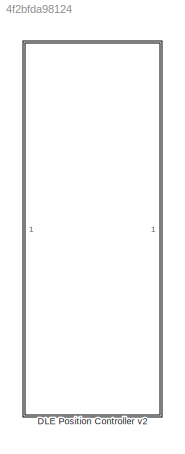
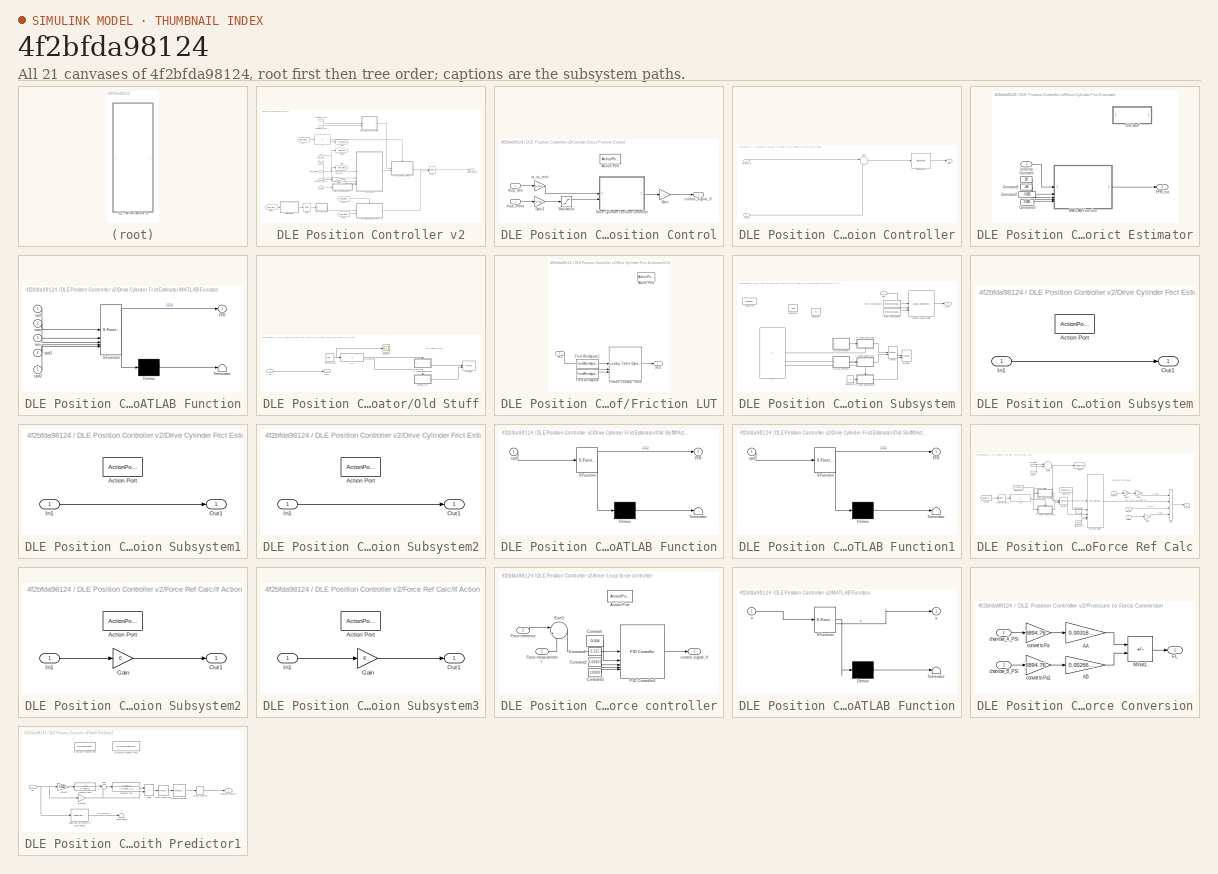
[diagram: thumbnail index - all 21 canvases of the model, root first then tree order]
MODEL slx_4f2bfda98124
KIND library
CONFIG AbsTol = auto
CONFIG EnableMultiTasking = off
CONFIG FixedStep = auto
CONFIG MaxStep = auto
CONFIG MinStep = auto
CONFIG RelTol = 1e-3
CONFIG SampleTimeConstraint = Unconstrained
CONFIG SolverName = VariableStepAuto
CONFIG StartTime = 0.0
CONFIG StopTime = 10.0
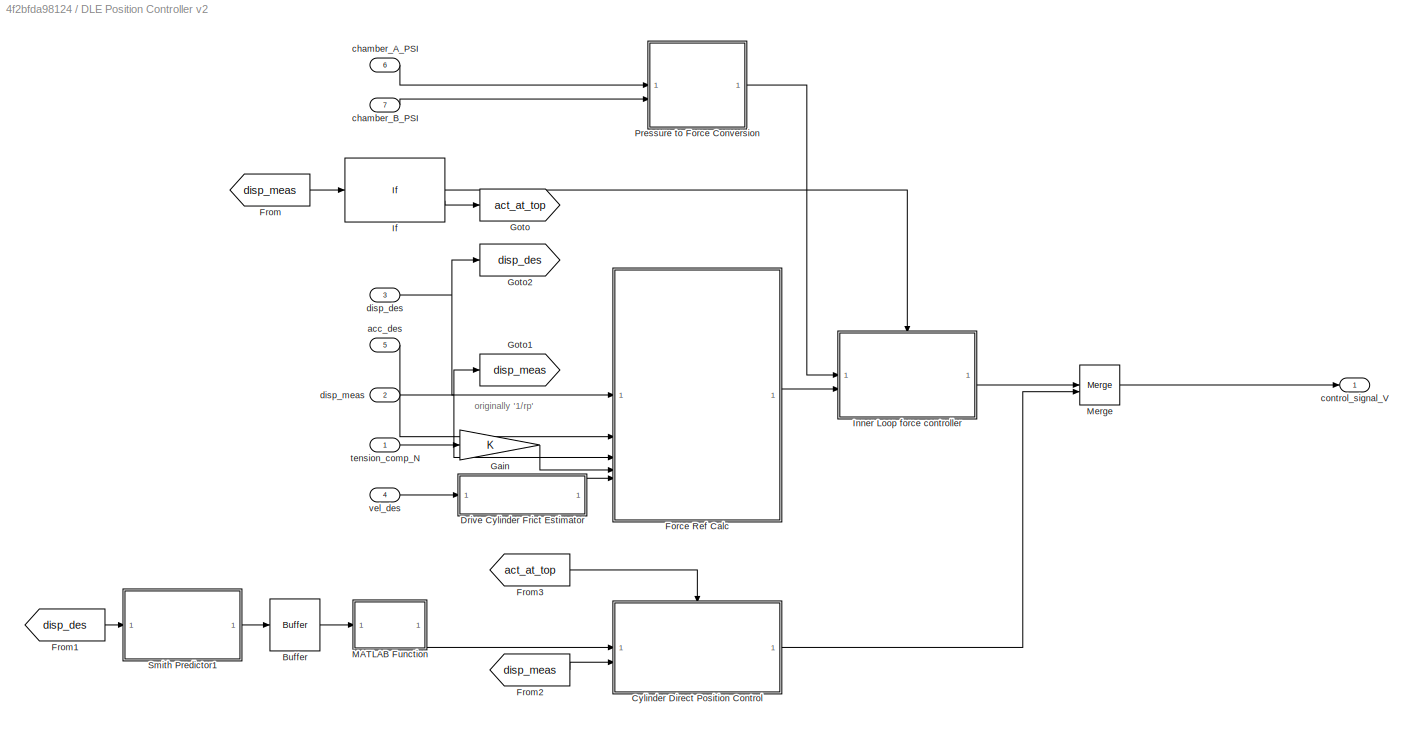
BLOCK [SubSystem] DLE Position Controller v2
BLOCK [Buffer] DLE Position Controller v2/Buffer
  Commented = through
  OutputFrames = off
BLOCK [SubSystem] DLE Position Controller v2/Cylinder Direct Position Control
  TreatAsAtomicUnit = on
BLOCK [ActionPort] DLE Position Controller v2/Cylinder Direct Position Control/Action Port
BLOCK [SubSystem] DLE Position Controller v2/Cylinder Direct Position Control/Drive Cylinder Position Controller
BLOCK [Reference] DLE Position Controller v2/Cylinder Direct Position Control/Drive Cylinder Position Controller/ PID Controller1  REF=slpidlib/PID Controller
  SourceBlock = slpidlib/PID Controller
  SourceType = PID 1dof
BLOCK [Inport] DLE Position Controller v2/Cylinder Direct Position Control/Drive Cylinder Position Controller/LVDT_in
BLOCK [Outport] DLE Position Controller v2/Cylinder Direct Position Control/Drive Cylinder Position Controller/Out1
  VectorParamsAs1DForOutWhenUnconnected = off
BLOCK [Sum] DLE Position Controller v2/Cylinder Direct Position Control/Drive Cylinder Position Controller/Sum
  Inputs = |+-
BLOCK [Inport] DLE Position Controller v2/Cylinder Direct Position Control/Drive Cylinder Position Controller/disp_des_in
  Port = 2
BLOCK [Gain] DLE Position Controller v2/Cylinder Direct Position Control/Gain
  Gain = -1
BLOCK [Gain] DLE Position Controller v2/Cylinder Direct Position Control/Gain1
  Gain = 39.3701
BLOCK [Saturate] DLE Position Controller v2/Cylinder Direct Position Control/Saturation
  LowerLimit = 0
  UpperLimit = 12
BLOCK [Outport] DLE Position Controller v2/Cylinder Direct Position Control/control_signal_V
  VectorParamsAs1DForOutWhenUnconnected = off
BLOCK [Inport] DLE Position Controller v2/Cylinder Direct Position Control/disp_des
BLOCK [Inport] DLE Position Controller v2/Cylinder Direct Position Control/disp_meas
  Port = 2
BLOCK [Gain] DLE Position Controller v2/Cylinder Direct Position Control/m_to_inch
  Gain = 39.3701
BLOCK [SubSystem] DLE Position Controller v2/Drive Cylinder Frict Estimator
BLOCK [Constant] DLE Position Controller v2/Drive Cylinder Frict Estimator/Constant
  Value = 150
BLOCK [Constant] DLE Position Controller v2/Drive Cylinder Frict Estimator/Constant1
  Value = -340
BLOCK [Constant] DLE Position Controller v2/Drive Cylinder Frict Estimator/Constant2
  Value = -0.0025
BLOCK [Constant] DLE Position Controller v2/Drive Cylinder Frict Estimator/Constant3
  Value = 0.0025
BLOCK [Outport] DLE Position Controller v2/Drive Cylinder Frict Estimator/FFR_est
  VectorParamsAs1DForOutWhenUnconnected = off
BLOCK [SubSystem] DLE Position Controller v2/Drive Cylinder Frict Estimator/MATLAB Function
  ErrorFcn = Stateflow.Translate.translate
  PermitHierarchicalResolution = ExplicitOnly
  SFBlockType = MATLAB Function
  TreatAsAtomicUnit = on
BLOCK [Demux] DLE Position Controller v2/Drive Cylinder Frict Estimator/MATLAB Function/ Demux 
  Outputs = 1
BLOCK [S-Function] DLE Position Controller v2/Drive Cylinder Frict Estimator/MATLAB Function/ SFunction 
  EnableBusSupport = off
  FunctionName = sf_sfun
  PortCounts = [5 2]
  SFcnIsStateOwnerBlock = off
  SFunctionDeploymentMode = off
  Tag = Stateflow S-Function 7
BLOCK [Terminator] DLE Position Controller v2/Drive Cylinder Frict Estimator/MATLAB Function/ Terminator 
BLOCK [Outport] DLE Position Controller v2/Drive Cylinder Frict Estimator/MATLAB Function/FFR
  VectorParamsAs1DForOutWhenUnconnected = off
BLOCK [Inport] DLE Position Controller v2/Drive Cylinder Frict Estimator/MATLAB Function/max
  Port = 2
BLOCK [Inport] DLE Position Controller v2/Drive Cylinder Frict Estimator/MATLAB Function/min
  Port = 3
BLOCK [Inport] DLE Position Controller v2/Drive Cylinder Frict Estimator/MATLAB Function/xpd
BLOCK [Inport] DLE Position Controller v2/Drive Cylinder Frict Estimator/MATLAB Function/xpd1
  Port = 4
BLOCK [Inport] DLE Position Controller v2/Drive Cylinder Frict Estimator/MATLAB Function/xpd2
  Port = 5
BLOCK [SubSystem] DLE Position Controller v2/Drive Cylinder Frict Estimator/Old Stuff
  Commented = on
BLOCK [SubSystem] DLE Position Controller v2/Drive Cylinder Frict Estimator/Old Stuff/Friction LUT
  TreatAsAtomicUnit = on
BLOCK [ActionPort] DLE Position Controller v2/Drive Cylinder Frict Estimator/Old Stuff/Friction LUT/Action Port
BLOCK [Reference] DLE Position Controller v2/Drive Cylinder Frict Estimator/Old Stuff/Friction LUT/Friction Lookup Table  REF=simulink/Lookup
Tables/Lookup
Table
Dynamic
  SourceBlock = simulink/Lookup\nTables/Lookup\nTable\nDynamic
  SourceType = Lookup Table Dynamic
BLOCK [FromWorkspace] DLE Position Controller v2/Drive Cylinder Frict Estimator/Old Stuff/Friction LUT/From Workspace
  VariableName = FFR
BLOCK [FromWorkspace] DLE Position Controller v2/Drive Cylinder Frict Estimator/Old Stuff/Friction LUT/From Workspace1
  VariableName = xpdot
BLOCK [Inport] DLE Position Controller v2/Drive Cylinder Frict Estimator/Old Stuff/Friction LUT/In1
BLOCK [Outport] DLE Position Controller v2/Drive Cylinder Frict Estimator/Old Stuff/Friction LUT/Out1
  VectorParamsAs1DForOutWhenUnconnected = off
BLOCK [SubSystem] DLE Position Controller v2/Drive Cylinder Frict Estimator/Old Stuff/If Action Subsystem
  TreatAsAtomicUnit = on
BLOCK [ActionPort] DLE Position Controller v2/Drive Cylinder Frict Estimator/Old Stuff/If Action Subsystem/Action Port
BLOCK [Constant] DLE Position Controller v2/Drive Cylinder Frict Estimator/Old Stuff/If Action Subsystem/Constant
  Value = 75
BLOCK [Constant] DLE Position Controller v2/Drive Cylinder Frict Estimator/Old Stuff/If Action Subsystem/Constant1
  Value = -250
BLOCK [Constant] DLE Position Controller v2/Drive Cylinder Frict Estimator/Old Stuff/If Action Subsystem/Constant2
  Commented = on
  Value = 0
BLOCK [Reference] DLE Position Controller v2/Drive Cylinder Frict Estimator/Old Stuff/If Action Subsystem/Friction Lookup Table  REF=simulink/Lookup
Tables/Lookup
Table
Dynamic
  SourceBlock = simulink/Lookup\nTables/Lookup\nTable\nDynamic
  SourceType = Lookup Table Dynamic
BLOCK [FromWorkspace] DLE Position Controller v2/Drive Cylinder Frict Estimator/Old Stuff/If Action Subsystem/From Workspace
  VariableName = FFR
BLOCK [FromWorkspace] DLE Position Controller v2/Drive Cylinder Frict Estimator/Old Stuff/If Action Subsystem/From Workspace1
  VariableName = xpdot
BLOCK [If] DLE Position Controller v2/Drive Cylinder Frict Estimator/Old Stuff/If Action Subsystem/If
  Commented = on
  ElseIfExpressions = u1 < 0
BLOCK [SubSystem] DLE Position Controller v2/Drive Cylinder Frict Estimator/Old Stuff/If Action Subsystem/If Action Subsystem
  Commented = on
  TreatAsAtomicUnit = on
BLOCK [ActionPort] DLE Position Controller v2/Drive Cylinder Frict Estimator/Old Stuff/If Action Subsystem/If Action Subsystem/Action Port
BLOCK [Inport] DLE Position Controller v2/Drive Cylinder Frict Estimator/Old Stuff/If Action Subsystem/If Action Subsystem/In1
BLOCK [Outport] DLE Position Controller v2/Drive Cylinder Frict Estimator/Old Stuff/If Action Subsystem/If Action Subsystem/Out1
  VectorParamsAs1DForOutWhenUnconnected = off
BLOCK [SubSystem] DLE Position Controller v2/Drive Cylinder Frict Estimator/Old Stuff/If Action Subsystem/If Action Subsystem1
  Commented = on
  TreatAsAtomicUnit = on
BLOCK [ActionPort] DLE Position Controller v2/Drive Cylinder Frict Estimator/Old Stuff/If Action Subsystem/If Action Subsystem1/Action Port
BLOCK [Inport] DLE Position Controller v2/Drive Cylinder Frict Estimator/Old Stuff/If Action Subsystem/If Action Subsystem1/In1
BLOCK [Outport] DLE Position Controller v2/Drive Cylinder Frict Estimator/Old Stuff/If Action Subsystem/If Action Subsystem1/Out1
  VectorParamsAs1DForOutWhenUnconnected = off
BLOCK [SubSystem] DLE Position Controller v2/Drive Cylinder Frict Estimator/Old Stuff/If Action Subsystem/If Action Subsystem2
  Commented = on
  TreatAsAtomicUnit = on
BLOCK [ActionPort] DLE Position Controller v2/Drive Cylinder Frict Estimator/Old Stuff/If Action Subsystem/If Action Subsystem2/Action Port
BLOCK [Inport] DLE Position Controller v2/Drive Cylinder Frict Estimator/Old Stuff/If Action Subsystem/If Action Subsystem2/In1
BLOCK [Outport] DLE Position Controller v2/Drive Cylinder Frict Estimator/Old Stuff/If Action Subsystem/If Action Subsystem2/Out1
  VectorParamsAs1DForOutWhenUnconnected = off
BLOCK [SubSystem] DLE Position Controller v2/Drive Cylinder Frict Estimator/Old Stuff/If Action Subsystem/MATLAB Function
  Commented = on
  ErrorFcn = Stateflow.Translate.translate
  PermitHierarchicalResolution = ExplicitOnly
  SFBlockType = MATLAB Function
  TreatAsAtomicUnit = on
BLOCK [Demux] DLE Position Controller v2/Drive Cylinder Frict Estimator/Old Stuff/If Action Subsystem/MATLAB Function/ Demux 
  Outputs = 1
BLOCK [S-Function] DLE Position Controller v2/Drive Cylinder Frict Estimator/Old Stuff/If Action Subsystem/MATLAB Function/ SFunction 
  EnableBusSupport = off
  FunctionName = sf_sfun
  PortCounts = [1 2]
  SFcnIsStateOwnerBlock = off
  SFunctionDeploymentMode = off
  Tag = Stateflow S-Function 8
BLOCK [Terminator] DLE Position Controller v2/Drive Cylinder Frict Estimator/Old Stuff/If Action Subsystem/MATLAB Function/ Terminator 
BLOCK [Outport] DLE Position Controller v2/Drive Cylinder Frict Estimator/Old Stuff/If Action Subsystem/MATLAB Function/FFR
  VectorParamsAs1DForOutWhenUnconnected = off
BLOCK [Inport] DLE Position Controller v2/Drive Cylinder Frict Estimator/Old Stuff/If Action Subsystem/MATLAB Function/xpd
BLOCK [SubSystem] DLE Position Controller v2/Drive Cylinder Frict Estimator/Old Stuff/If Action Subsystem/MATLAB Function1
  Commented = on
  ErrorFcn = Stateflow.Translate.translate
  PermitHierarchicalResolution = ExplicitOnly
  SFBlockType = MATLAB Function
  TreatAsAtomicUnit = on
BLOCK [Demux] DLE Position Controller v2/Drive Cylinder Frict Estimator/Old Stuff/If Action Subsystem/MATLAB Function1/ Demux 
  Outputs = 1
BLOCK [S-Function] DLE Position Controller v2/Drive Cylinder Frict Estimator/Old Stuff/If Action Subsystem/MATLAB Function1/ SFunction 
  EnableBusSupport = off
  FunctionName = sf_sfun
  PortCounts = [1 2]
  SFcnIsStateOwnerBlock = off
  SFunctionDeploymentMode = off
  Tag = Stateflow S-Function 9
BLOCK [Terminator] DLE Position Controller v2/Drive Cylinder Frict Estimator/Old Stuff/If Action Subsystem/MATLAB Function1/ Terminator 
BLOCK [Outport] DLE Position Controller v2/Drive Cylinder Frict Estimator/Old Stuff/If Action Subsystem/MATLAB Function1/FFR
  VectorParamsAs1DForOutWhenUnconnected = off
BLOCK [Inport] DLE Position Controller v2/Drive Cylinder Frict Estimator/Old Stuff/If Action Subsystem/MATLAB Function1/xpd
BLOCK [Merge] DLE Position Controller v2/Drive Cylinder Frict Estimator/Old Stuff/If Action Subsystem/Merge
  Commented = on
BLOCK [Merge] DLE Position Controller v2/Drive Cylinder Frict Estimator/Old Stuff/If Action Subsystem/Merge1
  Commented = on
BLOCK [Outport] DLE Position Controller v2/Drive Cylinder Frict Estimator/Old Stuff/If Action Subsystem/Out1
  VectorParamsAs1DForOutWhenUnconnected = off
BLOCK [Inport] DLE Position Controller v2/Drive Cylinder Frict Estimator/Old Stuff/If Action Subsystem/xpd
BLOCK [If] DLE Position Controller v2/Drive Cylinder Frict Estimator/Old Stuff/If1
  IfExpression = u1 == 1
BLOCK [Inport] DLE Position Controller v2/Drive Cylinder Frict Estimator/Old Stuff/In1
BLOCK [Reference] DLE Position Controller v2/Drive Cylinder Frict Estimator/Old Stuff/Interval Test  REF=simulink/Logic and Bit
Operations/Interval Test
  SourceBlock = simulink/Logic and Bit\nOperations/Interval Test
  SourceType = Interval Test
BLOCK [Merge] DLE Position Controller v2/Drive Cylinder Frict Estimator/Old Stuff/Merge1
BLOCK [Outport] DLE Position Controller v2/Drive Cylinder Frict Estimator/Old Stuff/Out1
  VectorParamsAs1DForOutWhenUnconnected = off
BLOCK [Scope] DLE Position Controller v2/Drive Cylinder Frict Estimator/Old Stuff/Scope11
  ActiveDisplayYMaximum = 1.125
  ActiveDisplayYMinimum = -0.125
  DataLoggingVariableName = ScopeData1
  Floating = off
  GraphicalSettings = {"GraphicalSettings":{"LegacySettings":true,"Style":{"Style":{"AxesColor":"[0 0 0]","ChannelNames":[""],"ColorOrder":"[1 1 0.0666666666666667;0.0745098039215686 0.623529411764706 1;1 0.411764705882353 0.16078431372549;0.392156862745098 0.831372549019608 0.0745098039215686;0.717647058823529 0.274509803921569 1;0.0588235294117647 1 1;1 0.0745098039215686 0.650980392156863]","CurrentConfiguration":"e...<+368ch>
  MultipleDisplayCache = [{"MaxYLimMag":1.125,"MaxYLimReal":1.125,"MinYLimMag":0,"MinYLimReal":-0.125,"PlotAsMagnitudePhase":false,"ShowGrid":true,"ShowLegend":false,"Title":"%<SignalLabel>","YLabel":""}]
  NumInputPorts = 1
  WasSavedAsWebScope = on
  WindowPosition = [1 41 1920 963]
BLOCK [Inport] DLE Position Controller v2/Drive Cylinder Frict Estimator/velocity
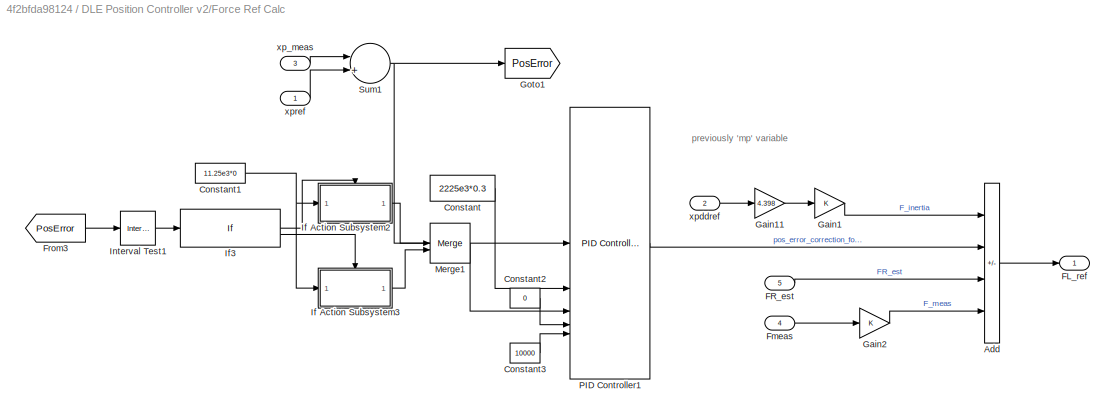
BLOCK [SubSystem] DLE Position Controller v2/Force Ref Calc
BLOCK [Reference] DLE Position Controller v2/Force Ref Calc/ PID Controller1  REF=slpidlib/PID Controller
  SourceBlock = slpidlib/PID Controller
  SourceType = PID 1dof
BLOCK [Sum] DLE Position Controller v2/Force Ref Calc/Add
  IconShape = rectangular
  Inputs = +-+-
BLOCK [Constant] DLE Position Controller v2/Force Ref Calc/Constant
  Value = 2225e3*0.3
BLOCK [Constant] DLE Position Controller v2/Force Ref Calc/Constant1
  Value = 11.25e3*0
BLOCK [Constant] DLE Position Controller v2/Force Ref Calc/Constant2
  Value = 0
BLOCK [Constant] DLE Position Controller v2/Force Ref Calc/Constant3
  Value = 10000
BLOCK [Outport] DLE Position Controller v2/Force Ref Calc/FL_ref
  VectorParamsAs1DForOutWhenUnconnected = off
BLOCK [Inport] DLE Position Controller v2/Force Ref Calc/FR_est
  Port = 5
BLOCK [Inport] DLE Position Controller v2/Force Ref Calc/Fmeas
  Port = 4
BLOCK [From] DLE Position Controller v2/Force Ref Calc/From3
  GotoTag = PosError
BLOCK [Gain] DLE Position Controller v2/Force Ref Calc/Gain1
BLOCK [Gain] DLE Position Controller v2/Force Ref Calc/Gain11
  Gain = 4.398
BLOCK [Gain] DLE Position Controller v2/Force Ref Calc/Gain2
BLOCK [Goto] DLE Position Controller v2/Force Ref Calc/Goto1
  GotoTag = PosError
BLOCK [SubSystem] DLE Position Controller v2/Force Ref Calc/If Action Subsystem2
  TreatAsAtomicUnit = on
BLOCK [ActionPort] DLE Position Controller v2/Force Ref Calc/If Action Subsystem2/Action Port
BLOCK [Gain] DLE Position Controller v2/Force Ref Calc/If Action Subsystem2/Gain
  Gain = 0
BLOCK [Inport] DLE Position Controller v2/Force Ref Calc/If Action Subsystem2/In1
BLOCK [Outport] DLE Position Controller v2/Force Ref Calc/If Action Subsystem2/Out1
  VectorParamsAs1DForOutWhenUnconnected = off
BLOCK [SubSystem] DLE Position Controller v2/Force Ref Calc/If Action Subsystem3
  TreatAsAtomicUnit = on
BLOCK [ActionPort] DLE Position Controller v2/Force Ref Calc/If Action Subsystem3/Action Port
BLOCK [Gain] DLE Position Controller v2/Force Ref Calc/If Action Subsystem3/Gain
BLOCK [Inport] DLE Position Controller v2/Force Ref Calc/If Action Subsystem3/In1
BLOCK [Outport] DLE Position Controller v2/Force Ref Calc/If Action Subsystem3/Out1
  VectorParamsAs1DForOutWhenUnconnected = off
BLOCK [If] DLE Position Controller v2/Force Ref Calc/If3
  IfExpression = u1 ==1
BLOCK [Reference] DLE Position Controller v2/Force Ref Calc/Interval Test1  REF=simulink/Logic and Bit
Operations/Interval Test
  SourceBlock = simulink/Logic and Bit\nOperations/Interval Test
  SourceType = Interval Test
BLOCK [Merge] DLE Position Controller v2/Force Ref Calc/Merge1
BLOCK [Sum] DLE Position Controller v2/Force Ref Calc/Sum1
  Inputs = |+-
BLOCK [Inport] DLE Position Controller v2/Force Ref Calc/xp_meas
  Port = 3
BLOCK [Inport] DLE Position Controller v2/Force Ref Calc/xpddref
  Port = 2
BLOCK [Inport] DLE Position Controller v2/Force Ref Calc/xpref
BLOCK [From] DLE Position Controller v2/From
  GotoTag = disp_meas
BLOCK [From] DLE Position Controller v2/From1
  GotoTag = disp_des
BLOCK [From] DLE Position Controller v2/From2
  GotoTag = disp_meas
BLOCK [From] DLE Position Controller v2/From3
  GotoTag = act_at_top
BLOCK [Gain] DLE Position Controller v2/Gain
BLOCK [Goto] DLE Position Controller v2/Goto
  GotoTag = act_at_top
BLOCK [Goto] DLE Position Controller v2/Goto1
  GotoTag = disp_meas
BLOCK [Goto] DLE Position Controller v2/Goto2
  GotoTag = disp_des
BLOCK [If] DLE Position Controller v2/If
  IfExpression = u1 < 0.27
BLOCK [SubSystem] DLE Position Controller v2/Inner Loop force controller
  TreatAsAtomicUnit = on
BLOCK [Reference] DLE Position Controller v2/Inner Loop force controller/ PID Controller1  REF=slpidlib/PID Controller
  SourceBlock = slpidlib/PID Controller
  SourceType = PID 1dof
BLOCK [ActionPort] DLE Position Controller v2/Inner Loop force controller/Action Port
BLOCK [Constant] DLE Position Controller v2/Inner Loop force controller/Constant
  Value = 0.004
BLOCK [Constant] DLE Position Controller v2/Inner Loop force controller/Constant2
  Value = 0.00001
BLOCK [Constant] DLE Position Controller v2/Inner Loop force controller/Constant3
  Value = 10000
BLOCK [Constant] DLE Position Controller v2/Inner Loop force controller/Constant4
  Value = 0.125
BLOCK [Inport] DLE Position Controller v2/Inner Loop force controller/Force measurement
BLOCK [Inport] DLE Position Controller v2/Inner Loop force controller/Force reference
  Port = 2
BLOCK [Sum] DLE Position Controller v2/Inner Loop force controller/Sum1
  Inputs = |+-
BLOCK [Outport] DLE Position Controller v2/Inner Loop force controller/control_signal_V
  VectorParamsAs1DForOutWhenUnconnected = off
BLOCK [SubSystem] DLE Position Controller v2/MATLAB Function
  Commented = through
  ErrorFcn = Stateflow.Translate.translate
  PermitHierarchicalResolution = ExplicitOnly
  SFBlockType = MATLAB Function
  TreatAsAtomicUnit = on
BLOCK [Demux] DLE Position Controller v2/MATLAB Function/ Demux 
  Outputs = 1
BLOCK [S-Function] DLE Position Controller v2/MATLAB Function/ SFunction 
  EnableBusSupport = off
  FunctionName = sf_sfun
  PortCounts = [1 2]
  SFcnIsStateOwnerBlock = off
  SFunctionDeploymentMode = off
  Tag = Stateflow S-Function 2
BLOCK [Terminator] DLE Position Controller v2/MATLAB Function/ Terminator 
BLOCK [Inport] DLE Position Controller v2/MATLAB Function/u
BLOCK [Outport] DLE Position Controller v2/MATLAB Function/y
BLOCK [Merge] DLE Position Controller v2/Merge
BLOCK [SubSystem] DLE Position Controller v2/Pressure to Force Conversion
BLOCK [Gain] DLE Position Controller v2/Pressure to Force Conversion/AA
  Gain = 0.00316692
BLOCK [Gain] DLE Position Controller v2/Pressure to Force Conversion/AB
  Gain = 0.00266021
BLOCK [Outport] DLE Position Controller v2/Pressure to Force Conversion/FL
  VectorParamsAs1DForOutWhenUnconnected = off
BLOCK [Sum] DLE Position Controller v2/Pressure to Force Conversion/Minus1
  IconShape = rectangular
  Inputs = +-
BLOCK [Inport] DLE Position Controller v2/Pressure to Force Conversion/chamber_A_PSI
BLOCK [Inport] DLE Position Controller v2/Pressure to Force Conversion/chamber_B_PSI
  Port = 2
BLOCK [Gain] DLE Position Controller v2/Pressure to Force Conversion/convert to Pa
  Gain = 6894.76
BLOCK [Gain] DLE Position Controller v2/Pressure to Force Conversion/convert to Pa1
  Gain = 6894.76
BLOCK [SubSystem] DLE Position Controller v2/Smith Predictor1
  Commented = through
BLOCK [Sum] DLE Position Controller v2/Smith Predictor1/Add2
  IconShape = rectangular
BLOCK [DiscreteTransferFcn] DLE Position Controller v2/Smith Predictor1/Discrete Transfer Fcn
  Commented = on
  Denominator = [0.0005 1]
  InputPortMap = u0
  Numerator = [1 0]
BLOCK [DiscreteTransferFcn] DLE Position Controller v2/Smith Predictor1/Discrete Transfer Fcn1
  Commented = on
  Denominator = [(0.0325)/2 1]
  InputPortMap = u0
  Numerator = [0.0325 0]
BLOCK [Gain] DLE Position Controller v2/Smith Predictor1/Gain15
  Gain = 0.0325
BLOCK [Gain] DLE Position Controller v2/Smith Predictor1/Gain16
BLOCK [Inport] DLE Position Controller v2/Smith Predictor1/In1
BLOCK [Reference] DLE Position Controller v2/Smith Predictor1/Lead-Lag (Discrete or Continuous)  REF=eeGeneralControl/Lead-Lag
(Discrete or Continuous)
  Commented = on
  SourceBlock = eeGeneralControl/Lead-Lag\n(Discrete or Continuous)
  SourceType = Lead-Lag (Discrete or Continuous)
BLOCK [Reference] DLE Position Controller v2/Smith Predictor1/Moving Average  REF=dspstat3/Moving
Average
  Commented = through
  SourceBlock = dspstat3/Moving\nAverage
  SourceType = dsp.simulink.MovingAverage
BLOCK [RateLimiter] DLE Position Controller v2/Smith Predictor1/Rate Limiter
  Commented = through
  FallingSlewLimit = -4e3
  RisingSlewLimit = 4e3
  SampleTimeMode = inherited
BLOCK [RateTransition] DLE Position Controller v2/Smith Predictor1/Rate Transition
  OutPortSampleTime = 0.0001
BLOCK [Sum] DLE Position Controller v2/Smith Predictor1/Sum
  Inputs = |++
BLOCK [Terminator] DLE Position Controller v2/Smith Predictor1/Terminator
  Commented = on
BLOCK [TransferFcn] DLE Position Controller v2/Smith Predictor1/Transfer Fcn
  Denominator = [(0.0325)/2 1]
  Numerator = [0.0325 0]
BLOCK [TransferFcn] DLE Position Controller v2/Smith Predictor1/Transfer Fcn1
  Denominator = [0.0005 1]
  Numerator = [1 0]
BLOCK [Outport] DLE Position Controller v2/Smith Predictor1/tension_comp_N
BLOCK [Inport] DLE Position Controller v2/acc_des
  Port = 5
BLOCK [Inport] DLE Position Controller v2/chamber_A_PSI
  Port = 6
BLOCK [Inport] DLE Position Controller v2/chamber_B_PSI
  Port = 7
BLOCK [Outport] DLE Position Controller v2/control_signal_V
BLOCK [Inport] DLE Position Controller v2/disp_des
  Port = 3
BLOCK [Inport] DLE Position Controller v2/disp_meas
  Port = 2
BLOCK [Inport] DLE Position Controller v2/tension_comp_N
BLOCK [Inport] DLE Position Controller v2/vel_des
  Port = 4
ANNOTATION DLE Position Controller v2: originally '1/rp'
ANNOTATION DLE Position Controller v2/Drive Cylinder Frict Estimator/Old Stuff: say velocity is zero
ANNOTATION DLE Position Controller v2/Force Ref Calc: previously 'mp' variable
LINE DLE Position Controller v2/Buffer:1 -> DLE Position Controller v2/MATLAB Function:1
LINE DLE Position Controller v2/Cylinder Direct Position Control/Drive Cylinder Position Controller/ PID Controller1:1 -> DLE Position Controller v2/Cylinder Direct Position Control/Drive Cylinder Position Controller/Out1:1
LINE DLE Position Controller v2/Cylinder Direct Position Control/Drive Cylinder Position Controller/LVDT_in:1 -> DLE Position Controller v2/Cylinder Direct Position Control/Drive Cylinder Position Controller/Sum:2
LINE DLE Position Controller v2/Cylinder Direct Position Control/Drive Cylinder Position Controller/Sum:1 -> DLE Position Controller v2/Cylinder Direct Position Control/Drive Cylinder Position Controller/ PID Controller1:1
LINE DLE Position Controller v2/Cylinder Direct Position Control/Drive Cylinder Position Controller/disp_des_in:1 -> DLE Position Controller v2/Cylinder Direct Position Control/Drive Cylinder Position Controller/Sum:1
LINE DLE Position Controller v2/Cylinder Direct Position Control/Drive Cylinder Position Controller:1 -> DLE Position Controller v2/Cylinder Direct Position Control/Gain:1
LINE DLE Position Controller v2/Cylinder Direct Position Control/Gain1:1 -> DLE Position Controller v2/Cylinder Direct Position Control/Saturation:1
LINE DLE Position Controller v2/Cylinder Direct Position Control/Gain:1 -> DLE Position Controller v2/Cylinder Direct Position Control/control_signal_V:1
LINE DLE Position Controller v2/Cylinder Direct Position Control/Saturation:1 -> DLE Position Controller v2/Cylinder Direct Position Control/Drive Cylinder Position Controller:2
LINE DLE Position Controller v2/Cylinder Direct Position Control/disp_des:1 -> DLE Position Controller v2/Cylinder Direct Position Control/m_to_inch:1
LINE DLE Position Controller v2/Cylinder Direct Position Control/disp_meas:1 -> DLE Position Controller v2/Cylinder Direct Position Control/Gain1:1
LINE DLE Position Controller v2/Cylinder Direct Position Control/m_to_inch:1 -> DLE Position Controller v2/Cylinder Direct Position Control/Drive Cylinder Position Controller:1
LINE DLE Position Controller v2/Cylinder Direct Position Control:1 -> DLE Position Controller v2/Merge:2
LINE DLE Position Controller v2/Drive Cylinder Frict Estimator/Constant1:1 -> DLE Position Controller v2/Drive Cylinder Frict Estimator/MATLAB Function:3
LINE DLE Position Controller v2/Drive Cylinder Frict Estimator/Constant2:1 -> DLE Position Controller v2/Drive Cylinder Frict Estimator/MATLAB Function:4
LINE DLE Position Controller v2/Drive Cylinder Frict Estimator/Constant3:1 -> DLE Position Controller v2/Drive Cylinder Frict Estimator/MATLAB Function:5
LINE DLE Position Controller v2/Drive Cylinder Frict Estimator/Constant:1 -> DLE Position Controller v2/Drive Cylinder Frict Estimator/MATLAB Function:2
LINE DLE Position Controller v2/Drive Cylinder Frict Estimator/MATLAB Function:1 -> DLE Position Controller v2/Drive Cylinder Frict Estimator/FFR_est:1
LINE DLE Position Controller v2/Drive Cylinder Frict Estimator/Old Stuff/Friction LUT/Friction Lookup Table:1 -> DLE Position Controller v2/Drive Cylinder Frict Estimator/Old Stuff/Friction LUT/Out1:1
LINE DLE Position Controller v2/Drive Cylinder Frict Estimator/Old Stuff/Friction LUT/From Workspace1:1 -> DLE Position Controller v2/Drive Cylinder Frict Estimator/Old Stuff/Friction LUT/Friction Lookup Table:2
LINE DLE Position Controller v2/Drive Cylinder Frict Estimator/Old Stuff/Friction LUT/From Workspace:1 -> DLE Position Controller v2/Drive Cylinder Frict Estimator/Old Stuff/Friction LUT/Friction Lookup Table:3
LINE DLE Position Controller v2/Drive Cylinder Frict Estimator/Old Stuff/Friction LUT/In1:1 -> DLE Position Controller v2/Drive Cylinder Frict Estimator/Old Stuff/Friction LUT/Friction Lookup Table:1
LINE DLE Position Controller v2/Drive Cylinder Frict Estimator/Old Stuff/Friction LUT:1 -> DLE Position Controller v2/Drive Cylinder Frict Estimator/Old Stuff/Merge1:2
LINE DLE Position Controller v2/Drive Cylinder Frict Estimator/Old Stuff/If Action Subsystem/Constant2:1 -> DLE Position Controller v2/Drive Cylinder Frict Estimator/Old Stuff/If Action Subsystem/If Action Subsystem2:1
LINE DLE Position Controller v2/Drive Cylinder Frict Estimator/Old Stuff/If Action Subsystem/Friction Lookup Table:1 -> DLE Position Controller v2/Drive Cylinder Frict Estimator/Old Stuff/If Action Subsystem/Out1:1
LINE DLE Position Controller v2/Drive Cylinder Frict Estimator/Old Stuff/If Action Subsystem/From Workspace1:1 -> DLE Position Controller v2/Drive Cylinder Frict Estimator/Old Stuff/If Action Subsystem/Friction Lookup Table:2
LINE DLE Position Controller v2/Drive Cylinder Frict Estimator/Old Stuff/If Action Subsystem/From Workspace:1 -> DLE Position Controller v2/Drive Cylinder Frict Estimator/Old Stuff/If Action Subsystem/Friction Lookup Table:3
LINE DLE Position Controller v2/Drive Cylinder Frict Estimator/Old Stuff/If Action Subsystem/If Action Subsystem/In1:1 -> DLE Position Controller v2/Drive Cylinder Frict Estimator/Old Stuff/If Action Subsystem/If Action Subsystem/Out1:1
LINE DLE Position Controller v2/Drive Cylinder Frict Estimator/Old Stuff/If Action Subsystem/If Action Subsystem1/In1:1 -> DLE Position Controller v2/Drive Cylinder Frict Estimator/Old Stuff/If Action Subsystem/If Action Subsystem1/Out1:1
LINE DLE Position Controller v2/Drive Cylinder Frict Estimator/Old Stuff/If Action Subsystem/If Action Subsystem1:1 -> DLE Position Controller v2/Drive Cylinder Frict Estimator/Old Stuff/If Action Subsystem/Merge:2
LINE DLE Position Controller v2/Drive Cylinder Frict Estimator/Old Stuff/If Action Subsystem/If Action Subsystem2/In1:1 -> DLE Position Controller v2/Drive Cylinder Frict Estimator/Old Stuff/If Action Subsystem/If Action Subsystem2/Out1:1
LINE DLE Position Controller v2/Drive Cylinder Frict Estimator/Old Stuff/If Action Subsystem/If Action Subsystem2:1 -> DLE Position Controller v2/Drive Cylinder Frict Estimator/Old Stuff/If Action Subsystem/Merge1:2
LINE DLE Position Controller v2/Drive Cylinder Frict Estimator/Old Stuff/If Action Subsystem/If Action Subsystem:1 -> DLE Position Controller v2/Drive Cylinder Frict Estimator/Old Stuff/If Action Subsystem/Merge:1
LINE DLE Position Controller v2/Drive Cylinder Frict Estimator/Old Stuff/If Action Subsystem/If:1 -> DLE Position Controller v2/Drive Cylinder Frict Estimator/Old Stuff/If Action Subsystem/If Action Subsystem:ifaction
LINE DLE Position Controller v2/Drive Cylinder Frict Estimator/Old Stuff/If Action Subsystem/If:2 -> DLE Position Controller v2/Drive Cylinder Frict Estimator/Old Stuff/If Action Subsystem/If Action Subsystem1:ifaction
LINE DLE Position Controller v2/Drive Cylinder Frict Estimator/Old Stuff/If Action Subsystem/If:3 -> DLE Position Controller v2/Drive Cylinder Frict Estimator/Old Stuff/If Action Subsystem/If Action Subsystem2:ifaction
LINE DLE Position Controller v2/Drive Cylinder Frict Estimator/Old Stuff/If Action Subsystem/MATLAB Function1:1 -> DLE Position Controller v2/Drive Cylinder Frict Estimator/Old Stuff/If Action Subsystem/If Action Subsystem1:1
LINE DLE Position Controller v2/Drive Cylinder Frict Estimator/Old Stuff/If Action Subsystem/MATLAB Function:1 -> DLE Position Controller v2/Drive Cylinder Frict Estimator/Old Stuff/If Action Subsystem/If Action Subsystem:1
LINE DLE Position Controller v2/Drive Cylinder Frict Estimator/Old Stuff/If Action Subsystem/Merge:1 -> DLE Position Controller v2/Drive Cylinder Frict Estimator/Old Stuff/If Action Subsystem/Merge1:1
LINE DLE Position Controller v2/Drive Cylinder Frict Estimator/Old Stuff/If Action Subsystem/xpd:1 -> DLE Position Controller v2/Drive Cylinder Frict Estimator/Old Stuff/If Action Subsystem/Friction Lookup Table:1
LINE DLE Position Controller v2/Drive Cylinder Frict Estimator/Old Stuff/If Action Subsystem:1 -> DLE Position Controller v2/Drive Cylinder Frict Estimator/Old Stuff/Merge1:1
LINE DLE Position Controller v2/Drive Cylinder Frict Estimator/Old Stuff/If1:1 -> DLE Position Controller v2/Drive Cylinder Frict Estimator/Old Stuff/If Action Subsystem:ifaction
LINE DLE Position Controller v2/Drive Cylinder Frict Estimator/Old Stuff/If1:2 -> DLE Position Controller v2/Drive Cylinder Frict Estimator/Old Stuff/Friction LUT:ifaction
LINE DLE Position Controller v2/Drive Cylinder Frict Estimator/Old Stuff/In1:1 -> DLE Position Controller v2/Drive Cylinder Frict Estimator/Old Stuff/Out1:1
NET DLE Position Controller v2/Drive Cylinder Frict Estimator/Old Stuff/Interval Test:1 -> DLE Position Controller v2/Drive Cylinder Frict Estimator/Old Stuff/If1:1, DLE Position Controller v2/Drive Cylinder Frict Estimator/Old Stuff/Scope11:1
LINE DLE Position Controller v2/Drive Cylinder Frict Estimator/velocity:1 -> DLE Position Controller v2/Drive Cylinder Frict Estimator/MATLAB Function:1
LINE DLE Position Controller v2/Drive Cylinder Frict Estimator:1 -> DLE Position Controller v2/Force Ref Calc:5
LINE DLE Position Controller v2/Force Ref Calc/ PID Controller1:1 -> DLE Position Controller v2/Force Ref Calc/Add:2
LINE DLE Position Controller v2/Force Ref Calc/Add:1 -> DLE Position Controller v2/Force Ref Calc/FL_ref:1
NET DLE Position Controller v2/Force Ref Calc/Constant1:1 -> DLE Position Controller v2/Force Ref Calc/If Action Subsystem2:1, DLE Position Controller v2/Force Ref Calc/If Action Subsystem3:1
LINE DLE Position Controller v2/Force Ref Calc/Constant2:1 -> DLE Position Controller v2/Force Ref Calc/ PID Controller1:4
LINE DLE Position Controller v2/Force Ref Calc/Constant3:1 -> DLE Position Controller v2/Force Ref Calc/ PID Controller1:5
LINE DLE Position Controller v2/Force Ref Calc/Constant:1 -> DLE Position Controller v2/Force Ref Calc/ PID Controller1:2
LINE DLE Position Controller v2/Force Ref Calc/FR_est:1 -> DLE Position Controller v2/Force Ref Calc/Add:3
LINE DLE Position Controller v2/Force Ref Calc/Fmeas:1 -> DLE Position Controller v2/Force Ref Calc/Gain2:1
LINE DLE Position Controller v2/Force Ref Calc/From3:1 -> DLE Position Controller v2/Force Ref Calc/Interval Test1:1
LINE DLE Position Controller v2/Force Ref Calc/Gain11:1 -> DLE Position Controller v2/Force Ref Calc/Gain1:1
LINE DLE Position Controller v2/Force Ref Calc/Gain1:1 -> DLE Position Controller v2/Force Ref Calc/Add:1
LINE DLE Position Controller v2/Force Ref Calc/Gain2:1 -> DLE Position Controller v2/Force Ref Calc/Add:4
LINE DLE Position Controller v2/Force Ref Calc/If Action Subsystem2/Gain:1 -> DLE Position Controller v2/Force Ref Calc/If Action Subsystem2/Out1:1
LINE DLE Position Controller v2/Force Ref Calc/If Action Subsystem2/In1:1 -> DLE Position Controller v2/Force Ref Calc/If Action Subsystem2/Gain:1
LINE DLE Position Controller v2/Force Ref Calc/If Action Subsystem2:1 -> DLE Position Controller v2/Force Ref Calc/Merge1:1
LINE DLE Position Controller v2/Force Ref Calc/If Action Subsystem3/Gain:1 -> DLE Position Controller v2/Force Ref Calc/If Action Subsystem3/Out1:1
LINE DLE Position Controller v2/Force Ref Calc/If Action Subsystem3/In1:1 -> DLE Position Controller v2/Force Ref Calc/If Action Subsystem3/Gain:1
LINE DLE Position Controller v2/Force Ref Calc/If Action Subsystem3:1 -> DLE Position Controller v2/Force Ref Calc/Merge1:2
LINE DLE Position Controller v2/Force Ref Calc/If3:1 -> DLE Position Controller v2/Force Ref Calc/If Action Subsystem2:ifaction
LINE DLE Position Controller v2/Force Ref Calc/If3:2 -> DLE Position Controller v2/Force Ref Calc/If Action Subsystem3:ifaction
LINE DLE Position Controller v2/Force Ref Calc/Interval Test1:1 -> DLE Position Controller v2/Force Ref Calc/If3:1
LINE DLE Position Controller v2/Force Ref Calc/Merge1:1 -> DLE Position Controller v2/Force Ref Calc/ PID Controller1:3
NET DLE Position Controller v2/Force Ref Calc/Sum1:1 -> DLE Position Controller v2/Force Ref Calc/ PID Controller1:1, DLE Position Controller v2/Force Ref Calc/Goto1:1
LINE DLE Position Controller v2/Force Ref Calc/xp_meas:1 -> DLE Position Controller v2/Force Ref Calc/Sum1:1
LINE DLE Position Controller v2/Force Ref Calc/xpddref:1 -> DLE Position Controller v2/Force Ref Calc/Gain11:1
LINE DLE Position Controller v2/Force Ref Calc/xpref:1 -> DLE Position Controller v2/Force Ref Calc/Sum1:2
LINE DLE Position Controller v2/Force Ref Calc:1 -> DLE Position Controller v2/Inner Loop force controller:2
LINE DLE Position Controller v2/From1:1 -> DLE Position Controller v2/Smith Predictor1:1
LINE DLE Position Controller v2/From2:1 -> DLE Position Controller v2/Cylinder Direct Position Control:2
LINE DLE Position Controller v2/From3:1 -> DLE Position Controller v2/Cylinder Direct Position Control:ifaction
LINE DLE Position Controller v2/From:1 -> DLE Position Controller v2/If:1
LINE DLE Position Controller v2/Gain:1 -> DLE Position Controller v2/Force Ref Calc:4
LINE DLE Position Controller v2/If:1 -> DLE Position Controller v2/Inner Loop force controller:ifaction
LINE DLE Position Controller v2/If:2 -> DLE Position Controller v2/Goto:1
LINE DLE Position Controller v2/Inner Loop force controller/ PID Controller1:1 -> DLE Position Controller v2/Inner Loop force controller/control_signal_V:1
LINE DLE Position Controller v2/Inner Loop force controller/Constant2:1 -> DLE Position Controller v2/Inner Loop force controller/ PID Controller1:4
LINE DLE Position Controller v2/Inner Loop force controller/Constant3:1 -> DLE Position Controller v2/Inner Loop force controller/ PID Controller1:5
LINE DLE Position Controller v2/Inner Loop force controller/Constant4:1 -> DLE Position Controller v2/Inner Loop force controller/ PID Controller1:3
LINE DLE Position Controller v2/Inner Loop force controller/Constant:1 -> DLE Position Controller v2/Inner Loop force controller/ PID Controller1:2
LINE DLE Position Controller v2/Inner Loop force controller/Force measurement:1 -> DLE Position Controller v2/Inner Loop force controller/Sum1:2
LINE DLE Position Controller v2/Inner Loop force controller/Force reference:1 -> DLE Position Controller v2/Inner Loop force controller/Sum1:1
LINE DLE Position Controller v2/Inner Loop force controller/Sum1:1 -> DLE Position Controller v2/Inner Loop force controller/ PID Controller1:1
LINE DLE Position Controller v2/Inner Loop force controller:1 -> DLE Position Controller v2/Merge:1
LINE DLE Position Controller v2/MATLAB Function:1 -> DLE Position Controller v2/Cylinder Direct Position Control:1
LINE DLE Position Controller v2/Merge:1 -> DLE Position Controller v2/control_signal_V:1
LINE DLE Position Controller v2/Pressure to Force Conversion/AA:1 -> DLE Position Controller v2/Pressure to Force Conversion/Minus1:1
LINE DLE Position Controller v2/Pressure to Force Conversion/AB:1 -> DLE Position Controller v2/Pressure to Force Conversion/Minus1:2
LINE DLE Position Controller v2/Pressure to Force Conversion/Minus1:1 -> DLE Position Controller v2/Pressure to Force Conversion/FL:1
LINE DLE Position Controller v2/Pressure to Force Conversion/chamber_A_PSI:1 -> DLE Position Controller v2/Pressure to Force Conversion/convert to Pa:1
LINE DLE Position Controller v2/Pressure to Force Conversion/chamber_B_PSI:1 -> DLE Position Controller v2/Pressure to Force Conversion/convert to Pa1:1
LINE DLE Position Controller v2/Pressure to Force Conversion/convert to Pa1:1 -> DLE Position Controller v2/Pressure to Force Conversion/AB:1
LINE DLE Position Controller v2/Pressure to Force Conversion/convert to Pa:1 -> DLE Position Controller v2/Pressure to Force Conversion/AA:1
LINE DLE Position Controller v2/Pressure to Force Conversion:1 -> DLE Position Controller v2/Inner Loop force controller:1
LINE DLE Position Controller v2/Smith Predictor1/Add2:1 -> DLE Position Controller v2/Smith Predictor1/Rate Transition:1
LINE DLE Position Controller v2/Smith Predictor1/Gain15:1 -> DLE Position Controller v2/Smith Predictor1/Transfer Fcn1:1
NET DLE Position Controller v2/Smith Predictor1/Gain16:1 -> DLE Position Controller v2/Smith Predictor1/Add2:2, DLE Position Controller v2/Smith Predictor1/Sum:2
NET DLE Position Controller v2/Smith Predictor1/In1:1 -> DLE Position Controller v2/Smith Predictor1/Gain15:1, DLE Position Controller v2/Smith Predictor1/Gain16:1, DLE Position Controller v2/Smith Predictor1/Lead-Lag (Discrete or Continuous):1
LINE DLE Position Controller v2/Smith Predictor1/Lead-Lag (Discrete or Continuous):1 -> DLE Position Controller v2/Smith Predictor1/Terminator:1
LINE DLE Position Controller v2/Smith Predictor1/Moving Average:1 -> DLE Position Controller v2/Smith Predictor1/Rate Limiter:1
LINE DLE Position Controller v2/Smith Predictor1/Rate Limiter:1 -> DLE Position Controller v2/Smith Predictor1/tension_comp_N:1
LINE DLE Position Controller v2/Smith Predictor1/Rate Transition:1 -> DLE Position Controller v2/Smith Predictor1/Moving Average:1
LINE DLE Position Controller v2/Smith Predictor1/Sum:1 -> DLE Position Controller v2/Smith Predictor1/Transfer Fcn:1
LINE DLE Position Controller v2/Smith Predictor1/Transfer Fcn1:1 -> DLE Position Controller v2/Smith Predictor1/Sum:1
LINE DLE Position Controller v2/Smith Predictor1/Transfer Fcn:1 -> DLE Position Controller v2/Smith Predictor1/Add2:1
LINE DLE Position Controller v2/Smith Predictor1:1 -> DLE Position Controller v2/Buffer:1
LINE DLE Position Controller v2/acc_des:1 -> DLE Position Controller v2/Force Ref Calc:2
LINE DLE Position Controller v2/chamber_A_PSI:1 -> DLE Position Controller v2/Pressure to Force Conversion:1
LINE DLE Position Controller v2/chamber_B_PSI:1 -> DLE Position Controller v2/Pressure to Force Conversion:2
NET DLE Position Controller v2/disp_des:1 -> DLE Position Controller v2/Force Ref Calc:1, DLE Position Controller v2/Goto2:1
NET DLE Position Controller v2/disp_meas:1 -> DLE Position Controller v2/Force Ref Calc:3, DLE Position Controller v2/Goto1:1
LINE DLE Position Controller v2/tension_comp_N:1 -> DLE Position Controller v2/Gain:1
LINE DLE Position Controller v2/vel_des:1 -> DLE Position Controller v2/Drive Cylinder Frict Estimator:1
note: NET lines group one-source signal fan-out (src -> all destinations, sorted); 1:1 wires keep LINE
CHART DLE Position Controller v2/MATLAB Function states=1 transitions=1
  STATE_LABEL 'eML_blk_kernel()'
  STATE_LABEL 'SCRIPT:\nfunction y = fcn(u)\n\n[~, ind] = max(abs(u));\ny = u(ind);\n'
CHART DLE Position Controller v2/Drive Cylinder Frict Estimator/MATLAB Function states=1 transitions=1
  STATE_LABEL 'eML_blk_kernel()'
  STATE_LABEL 'SCRIPT:\nfunction FFR = FrictionPoly(xpd, max, min,xpd1, xpd2)\n\np_pos = [286259495.429843,-173193752.694681,41175113.3821288,-4870042.97579715,308159.025845462,-8434.36139981410,146.161974739502];\np_neg = [-162371605.890866,-93401901.1521574,-21487354.7937511,-2556477.89021572,-183283.452954630,-6357.37685861595,-310.459473151221];\n\n\nif xpd > xpd2\n        \n        if xpd <= 0.179334\n            FFR...<+876ch>'
CHART DLE Position Controller v2/Drive Cylinder Frict Estimator/Old Stuff/If Action
Subsystem/MATLAB Function states=1 transitions=1
  STATE_LABEL 'eML_blk_kernel()'
  STATE_LABEL 'SCRIPT:\nfunction FFR = fcn(xpd)\n\nFFR = 250/0.006*xpd; %linear fit for static friction force\nend'
CHART DLE Position Controller v2/Drive Cylinder Frict Estimator/Old Stuff/If Action
Subsystem/MATLAB Function1 states=1 transitions=1
  STATE_LABEL 'eML_blk_kernel()'
  STATE_LABEL 'SCRIPT:\nfunction FFR = fcn(xpd)\n\nFFR = 450/0.004*xpd; %linear fit for static friction force\nend'
CHART  states=0 transitions=0
CHART  states=0 transitions=0
CHART  states=0 transitions=0
CHART  states=0 transitions=0
